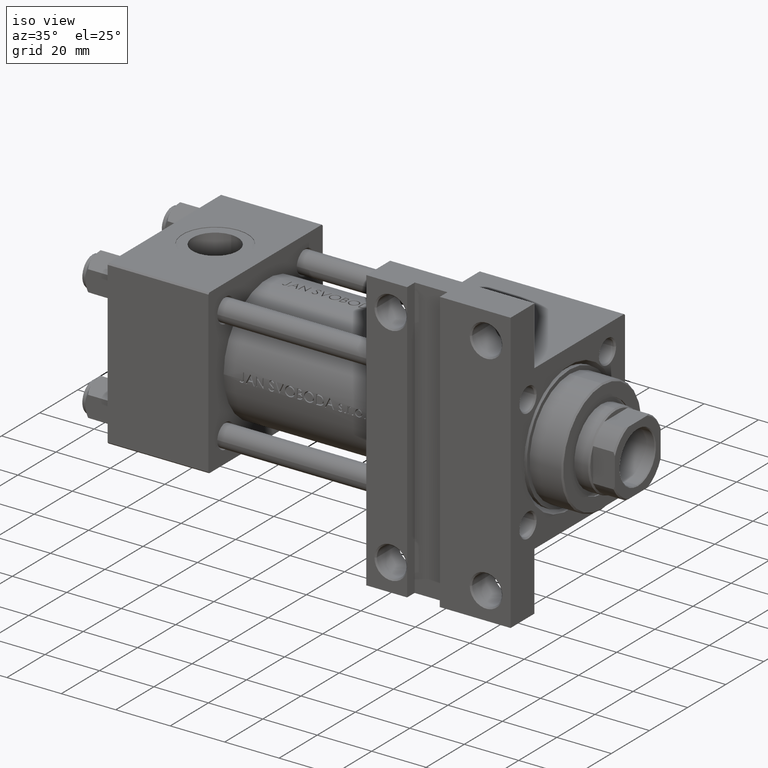
[diagram: clean part render]
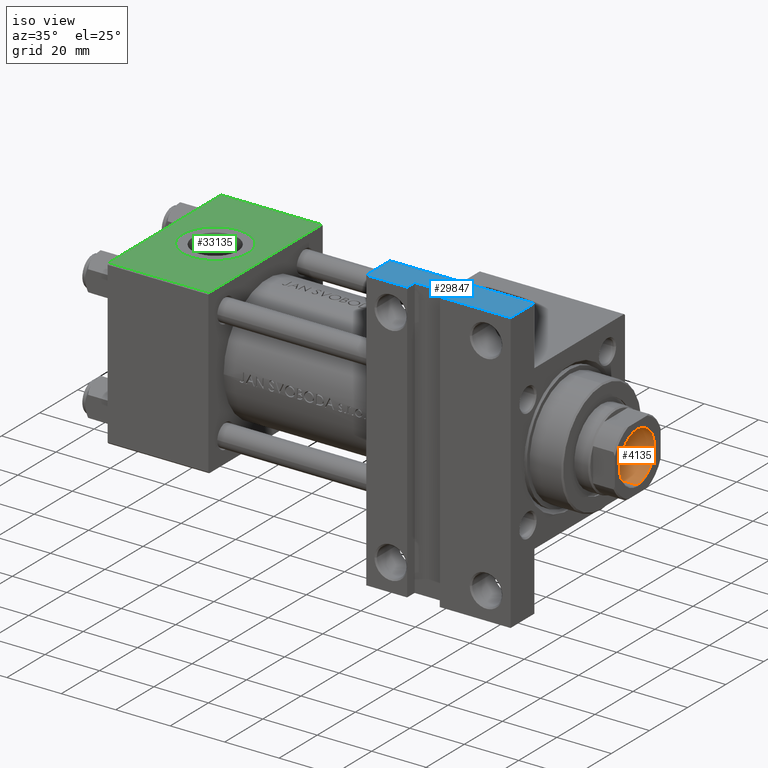
[diagram: same view with three faces highlighted in distinct colors, each labeled with its STEP entity id]
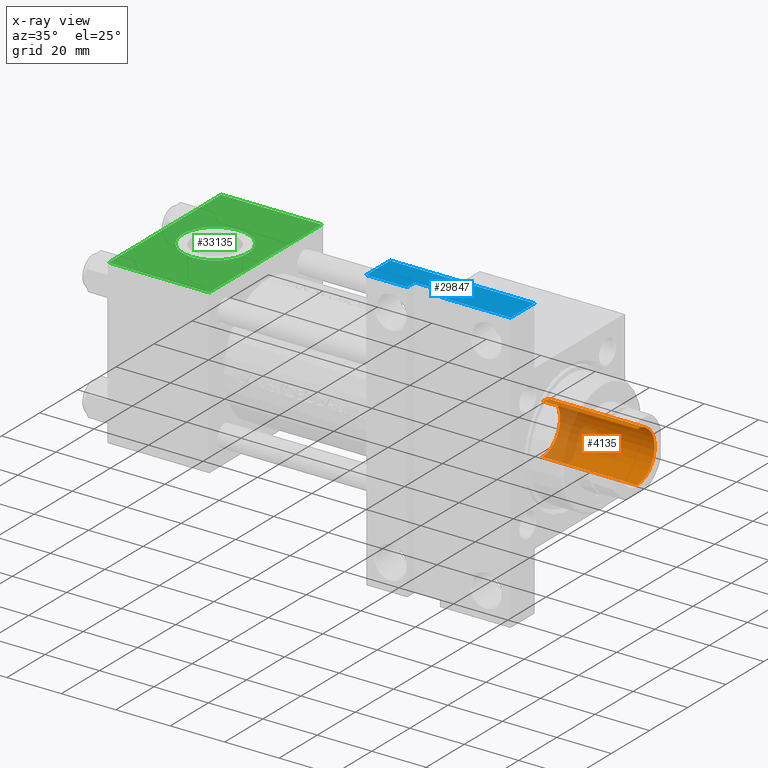
[diagram: x-ray of the same camera — body ghosted, the three highlighted faces saturated]
A machine part, iso view with three faces highlighted in distinct colors.
The next image is the same camera in x-ray (body ghosted, the three faces saturated) — at least one of them is partly hidden behind the body in this view.
Their STEP definitions:

[orange] entity #4135 — the highlighted cylindrical surface (edge-blend (fillet) strip) has radius 9.25 mm, axis along (1, 0, 0).
#2421 = VERTEX_POINT ( 'NONE', #5140 ) ;
#2579 = DIRECTION ( 'NONE',  ( -0.000000000000000000, -0.000000000000000000, 1.000000000000000000 ) ) ;
#4135 = ADVANCED_FACE ( 'NONE', ( #43366 ), #5666, .F. ) ;
#5140 = CARTESIAN_POINT ( 'NONE',  ( 9.249999999999994671, 0.000000000000000000, 135.7000000000000455 ) ) ;
#5666 = CYLINDRICAL_SURFACE ( 'NONE', #7620, 9.249999999999994671 ) ;
#5753 = CARTESIAN_POINT ( 'NONE',  ( -9.249999999999992895, 1.132798289211300712E-15, 101.0000000000000000 ) ) ;
#6407 = VERTEX_POINT ( 'NONE', #28234 ) ;
#7620 = AXIS2_PLACEMENT_3D ( 'NONE', #17232, #25110, #21403 ) ;
#10296 = DIRECTION ( 'NONE',  ( 0.000000000000000000, 0.000000000000000000, 1.000000000000000000 ) ) ;
#12410 = VERTEX_POINT ( 'NONE', #48758 ) ;
#12504 = AXIS2_PLACEMENT_3D ( 'NONE', #13994, #10296, #13273 ) ;
#13273 = DIRECTION ( 'NONE',  ( 1.000000000000000000, 0.000000000000000000, 0.000000000000000000 ) ) ;
#13994 = CARTESIAN_POINT ( 'NONE',  ( 0.000000000000000000, 0.000000000000000000, 135.7000000000000455 ) ) ;
#16778 = VERTEX_POINT ( 'NONE', #5753 ) ;
#17232 = CARTESIAN_POINT ( 'NONE',  ( 0.000000000000000000, 0.000000000000000000, 136.0000000000000000 ) ) ;
#17284 = LINE ( 'NONE', #32317, #23248 ) ;
#19001 = AXIS2_PLACEMENT_3D ( 'NONE', #40282, #2579, #39797 ) ;
#20593 = CIRCLE ( 'NONE', #19001, 9.249999999999992895 ) ;
#20860 = DIRECTION ( 'NONE',  ( -0.000000000000000000, -0.000000000000000000, 1.000000000000000000 ) ) ;
#21403 = DIRECTION ( 'NONE',  ( 1.000000000000000000, 0.000000000000000000, 0.000000000000000000 ) ) ;
#23248 = VECTOR ( 'NONE', #42454, 1000.000000000000000 ) ;
#25110 = DIRECTION ( 'NONE',  ( -0.000000000000000000, -0.000000000000000000, 1.000000000000000000 ) ) ;
#26509 = EDGE_CURVE ( 'NONE', #16778, #6407, #20593, .T. ) ;
#28052 = ORIENTED_EDGE ( 'NONE', *, *, #28576, .T. ) ;
#28076 = ORIENTED_EDGE ( 'NONE', *, *, #47843, .T. ) ;
#28230 = CIRCLE ( 'NONE', #12504, 9.249999999999994671 ) ;
#28234 = CARTESIAN_POINT ( 'NONE',  ( 9.249999999999992895, 0.000000000000000000, 101.0000000000000000 ) ) ;
#28576 = EDGE_CURVE ( 'NONE', #16778, #12410, #39619, .T. ) ;
#32317 = CARTESIAN_POINT ( 'NONE',  ( 9.249999999999994671, 0.000000000000000000, 136.0000000000000000 ) ) ;
#35190 = CARTESIAN_POINT ( 'NONE',  ( -9.249999999999994671, 1.132798289211300909E-15, 136.0000000000000000 ) ) ;
#37252 = EDGE_CURVE ( 'NONE', #6407, #2421, #17284, .T. ) ;
#38590 = EDGE_LOOP ( 'NONE', ( #42756, #28052, #28076, #39404 ) ) ;
#39404 = ORIENTED_EDGE ( 'NONE', *, *, #37252, .F. ) ;
#39545 = VECTOR ( 'NONE', #20860, 1000.000000000000000 ) ;
#39619 = LINE ( 'NONE', #35190, #39545 ) ;
#39797 = DIRECTION ( 'NONE',  ( 1.000000000000000000, 0.000000000000000000, 0.000000000000000000 ) ) ;
#40282 = CARTESIAN_POINT ( 'NONE',  ( 0.000000000000000000, 0.000000000000000000, 101.0000000000000000 ) ) ;
#42454 = DIRECTION ( 'NONE',  ( -0.000000000000000000, -0.000000000000000000, 1.000000000000000000 ) ) ;
#42756 = ORIENTED_EDGE ( 'NONE', *, *, #26509, .F. ) ;
#43366 = FACE_OUTER_BOUND ( 'NONE', #38590, .T. ) ;
#47843 = EDGE_CURVE ( 'NONE', #12410, #2421, #28230, .T. ) ;
#48758 = CARTESIAN_POINT ( 'NONE',  ( -9.249999999999994671, 1.132798289211300909E-15, 135.7000000000000455 ) ) ;

[blue] entity #29847 — the highlighted planar face has unit normal (0, 0, 1).
#265 = VERTEX_POINT ( 'NONE', #48111 ) ;
#1866 = CARTESIAN_POINT ( 'NONE',  ( 94.99999999999998579, -51.50000000000000711, -17.49999999999999645 ) ) ;
#2589 = EDGE_CURVE ( 'NONE', #265, #37037, #29459, .T. ) ;
#3569 = LINE ( 'NONE', #18590, #29837 ) ;
#4077 = EDGE_CURVE ( 'NONE', #9869, #8596, #40158, .T. ) ;
#4221 = CARTESIAN_POINT ( 'NONE',  ( 109.9999999999999858, -51.49999999999999289, -29.99999999999999645 ) ) ;
#5375 = VECTOR ( 'NONE', #18919, 1000.000000000000000 ) ;
#5754 = EDGE_CURVE ( 'NONE', #37037, #47398, #30817, .T. ) ;
#6809 = VECTOR ( 'NONE', #29221, 1000.000000000000000 ) ;
#7032 = CARTESIAN_POINT ( 'NONE',  ( 109.9999999999999858, -51.49999999999999289, -25.99999999999999645 ) ) ;
#8395 = VECTOR ( 'NONE', #21639, 1000.000000000000000 ) ;
#8596 = VERTEX_POINT ( 'NONE', #30734 ) ;
#8976 = VERTEX_POINT ( 'NONE', #9712 ) ;
#9712 = CARTESIAN_POINT ( 'NONE',  ( 121.9999999999999858, -51.49999999999999289, -29.99999999999999645 ) ) ;
#9869 = VERTEX_POINT ( 'NONE', #34318 ) ;
#10085 = CARTESIAN_POINT ( 'NONE',  ( 94.99999999999998579, -51.50000000000000711, -17.49999999999999645 ) ) ;
#10439 = DIRECTION ( 'NONE',  ( -1.000000000000000000, -0.000000000000000000, -0.000000000000000000 ) ) ;
#10525 = EDGE_CURVE ( 'NONE', #265, #8976, #30994, .T. ) ;
#10967 = ORIENTED_EDGE ( 'NONE', *, *, #10525, .T. ) ;
#13300 = CARTESIAN_POINT ( 'NONE',  ( 148.0000000000000000, -51.50000000000000711, -17.49999999999999645 ) ) ;
#13790 = CARTESIAN_POINT ( 'NONE',  ( 109.9999999999999858, -51.49999999999999289, -25.99999999999999645 ) ) ;
#14397 = AXIS2_PLACEMENT_3D ( 'NONE', #1866, #47450, #16882 ) ;
#15820 = DIRECTION ( 'NONE',  ( 0.000000000000000000, 0.000000000000000000, -1.000000000000000000 ) ) ;
#16441 = CARTESIAN_POINT ( 'NONE',  ( 94.99999999999998579, -51.50000000000000711, -17.49999999999999645 ) ) ;
#16882 = DIRECTION ( 'NONE',  ( 0.000000000000000000, -0.000000000000000000, -1.000000000000000000 ) ) ;
#17892 = EDGE_CURVE ( 'NONE', #41766, #26267, #3569, .T. ) ;
#18092 = EDGE_CURVE ( 'NONE', #47398, #26267, #24903, .T. ) ;
#18590 = CARTESIAN_POINT ( 'NONE',  ( 94.99999999999998579, -51.50000000000000711, -17.49999999999999645 ) ) ;
#18919 = DIRECTION ( 'NONE',  ( -0.000000000000000000, -0.000000000000000000, -1.000000000000000000 ) ) ;
#20044 = EDGE_CURVE ( 'NONE', #9869, #41766, #28021, .T. ) ;
#20816 = FACE_OUTER_BOUND ( 'NONE', #21840, .T. ) ;
#21447 = DIRECTION ( 'NONE',  ( -1.000000000000000000, -0.000000000000000000, -0.000000000000000000 ) ) ;
#21639 = DIRECTION ( 'NONE',  ( 0.000000000000000000, 0.000000000000000000, -1.000000000000000000 ) ) ;
#21840 = EDGE_LOOP ( 'NONE', ( #10967, #23717, #30171, #28822, #28594, #34877, #44403, #25259 ) ) ;
#23717 = ORIENTED_EDGE ( 'NONE', *, *, #25730, .F. ) ;
#24314 = DIRECTION ( 'NONE',  ( -1.000000000000000000, -0.000000000000000000, -0.000000000000000000 ) ) ;
#24903 = LINE ( 'NONE', #25639, #32987 ) ;
#25259 = ORIENTED_EDGE ( 'NONE', *, *, #2589, .F. ) ;
#25639 = CARTESIAN_POINT ( 'NONE',  ( 94.99999999999998579, -51.50000000000000711, -29.99999999999999645 ) ) ;
#25730 = EDGE_CURVE ( 'NONE', #8596, #8976, #40275, .T. ) ;
#26263 = CARTESIAN_POINT ( 'NONE',  ( 94.99999999999998579, -51.50000000000000711, -29.99999999999999645 ) ) ;
#26267 = VERTEX_POINT ( 'NONE', #26263 ) ;
#28021 = LINE ( 'NONE', #16441, #44860 ) ;
#28594 = ORIENTED_EDGE ( 'NONE', *, *, #17892, .T. ) ;
#28822 = ORIENTED_EDGE ( 'NONE', *, *, #20044, .T. ) ;
#29221 = DIRECTION ( 'NONE',  ( -1.000000000000000000, -0.000000000000000000, -0.000000000000000000 ) ) ;
#29459 = LINE ( 'NONE', #7032, #6809 ) ;
#29837 = VECTOR ( 'NONE', #15820, 1000.000000000000000 ) ;
#29847 = ADVANCED_FACE ( 'NONE', ( #20816 ), #39572, .T. ) ;
#30171 = ORIENTED_EDGE ( 'NONE', *, *, #4077, .F. ) ;
#30734 = CARTESIAN_POINT ( 'NONE',  ( 148.0000000000000000, -51.50000000000000711, -29.99999999999999645 ) ) ;
#30817 = LINE ( 'NONE', #13790, #47855 ) ;
#30994 = LINE ( 'NONE', #46028, #5375 ) ;
#31557 = DIRECTION ( 'NONE',  ( -0.000000000000000000, -0.000000000000000000, -1.000000000000000000 ) ) ;
#32376 = CARTESIAN_POINT ( 'NONE',  ( 109.9999999999999858, -51.49999999999999289, -25.99999999999999645 ) ) ;
#32987 = VECTOR ( 'NONE', #21447, 1000.000000000000000 ) ;
#34318 = CARTESIAN_POINT ( 'NONE',  ( 148.0000000000000000, -51.50000000000000711, -17.49999999999999645 ) ) ;
#34877 = ORIENTED_EDGE ( 'NONE', *, *, #18092, .F. ) ;
#37037 = VERTEX_POINT ( 'NONE', #32376 ) ;
#39572 = PLANE ( 'NONE',  #14397 ) ;
#40158 = LINE ( 'NONE', #13300, #8395 ) ;
#40275 = LINE ( 'NONE', #47923, #40345 ) ;
#40345 = VECTOR ( 'NONE', #10439, 1000.000000000000000 ) ;
#41766 = VERTEX_POINT ( 'NONE', #10085 ) ;
#44403 = ORIENTED_EDGE ( 'NONE', *, *, #5754, .F. ) ;
#44860 = VECTOR ( 'NONE', #24314, 1000.000000000000000 ) ;
#46028 = CARTESIAN_POINT ( 'NONE',  ( 121.9999999999999858, -51.49999999999999289, -25.99999999999999645 ) ) ;
#47398 = VERTEX_POINT ( 'NONE', #4221 ) ;
#47450 = DIRECTION ( 'NONE',  ( 0.000000000000000000, -1.000000000000000000, 0.000000000000000000 ) ) ;
#47855 = VECTOR ( 'NONE', #31557, 1000.000000000000000 ) ;
#47923 = CARTESIAN_POINT ( 'NONE',  ( 94.99999999999998579, -51.50000000000000711, -29.99999999999999645 ) ) ;
#48111 = CARTESIAN_POINT ( 'NONE',  ( 121.9999999999999858, -51.50000000000000711, -25.99999999999999645 ) ) ;

[green] entity #33135 — the highlighted planar face has unit normal (0, 0, -1).
#917 = EDGE_CURVE ( 'NONE', #15192, #35498, #15852, .T. ) ;
#2215 = VERTEX_POINT ( 'NONE', #31805 ) ;
#3155 = DIRECTION ( 'NONE',  ( -0.000000000000000000, 1.000000000000000000, 0.000000000000000000 ) ) ;
#4107 = PLANE ( 'NONE',  #32585 ) ;
#5561 = CARTESIAN_POINT ( 'NONE',  ( 37.00000000000000000, -30.00000000000000000, -29.50000000000001776 ) ) ;
#7081 = EDGE_LOOP ( 'NONE', ( #20955, #16948, #9656, #11019 ) ) ;
#9656 = ORIENTED_EDGE ( 'NONE', *, *, #20228, .F. ) ;
#9875 = LINE ( 'NONE', #32540, #21119 ) ;
#9957 = VECTOR ( 'NONE', #17364, 1000.000000000000000 ) ;
#10089 = ORIENTED_EDGE ( 'NONE', *, *, #10199, .F. ) ;
#10199 = EDGE_CURVE ( 'NONE', #2215, #43698, #35284, .T. ) ;
#11019 = ORIENTED_EDGE ( 'NONE', *, *, #917, .T. ) ;
#11254 = EDGE_CURVE ( 'NONE', #35498, #16148, #9875, .T. ) ;
#11266 = DIRECTION ( 'NONE',  ( 0.000000000000000000, -0.000000000000000000, 1.000000000000000000 ) ) ;
#12022 = EDGE_LOOP ( 'NONE', ( #17046, #10089 ) ) ;
#12291 = CARTESIAN_POINT ( 'NONE',  ( 37.00000000000000000, -30.00000000000000000, 29.49999999999999289 ) ) ;
#12342 = CARTESIAN_POINT ( 'NONE',  ( 0.000000000000000000, -30.00000000000000000, -29.50000000000001776 ) ) ;
#13693 = CARTESIAN_POINT ( 'NONE',  ( 18.50000000000000000, -30.00000000000000000, 0.000000000000000000 ) ) ;
#14143 = CARTESIAN_POINT ( 'NONE',  ( 37.00000000000000000, -30.00000000000000000, -29.50000000000001776 ) ) ;
#15163 = DIRECTION ( 'NONE',  ( 0.000000000000000000, 0.000000000000000000, -1.000000000000000000 ) ) ;
#15192 = VERTEX_POINT ( 'NONE', #12291 ) ;
#15683 = CIRCLE ( 'NONE', #33769, 12.00000000000000178 ) ;
#15852 = LINE ( 'NONE', #31615, #44405 ) ;
#16024 = DIRECTION ( 'NONE',  ( 0.000000000000000000, 0.000000000000000000, -1.000000000000000000 ) ) ;
#16148 = VERTEX_POINT ( 'NONE', #12342 ) ;
#16513 = DIRECTION ( 'NONE',  ( 0.000000000000000000, -1.000000000000000000, -8.673617379884036705E-17 ) ) ;
#16948 = ORIENTED_EDGE ( 'NONE', *, *, #42338, .T. ) ;
#17046 = ORIENTED_EDGE ( 'NONE', *, *, #17870, .F. ) ;
#17364 = DIRECTION ( 'NONE',  ( 1.000000000000000000, 0.000000000000000000, 0.000000000000000000 ) ) ;
#17870 = EDGE_CURVE ( 'NONE', #43698, #2215, #15683, .T. ) ;
#18845 = CARTESIAN_POINT ( 'NONE',  ( 37.00000000000000000, -30.00000000000000000, 29.99999999999999289 ) ) ;
#18949 = CARTESIAN_POINT ( 'NONE',  ( 0.000000000000000000, -30.00000000000000000, 29.49999999999999289 ) ) ;
#19531 = AXIS2_PLACEMENT_3D ( 'NONE', #45846, #16513, #16024 ) ;
#20228 = EDGE_CURVE ( 'NONE', #15192, #26521, #33888, .T. ) ;
#20955 = ORIENTED_EDGE ( 'NONE', *, *, #11254, .T. ) ;
#21119 = VECTOR ( 'NONE', #40929, 1000.000000000000000 ) ;
#22588 = FACE_BOUND ( 'NONE', #12022, .T. ) ;
#25967 = VECTOR ( 'NONE', #15163, 1000.000000000000000 ) ;
#26521 = VERTEX_POINT ( 'NONE', #14143 ) ;
#28727 = DIRECTION ( 'NONE',  ( 0.000000000000000000, -1.000000000000000000, -8.673617379884036705E-17 ) ) ;
#31615 = CARTESIAN_POINT ( 'NONE',  ( 37.00000000000000000, -30.00000000000000000, 29.49999999999999289 ) ) ;
#31805 = CARTESIAN_POINT ( 'NONE',  ( 18.50000000000000000, -30.00000000000000000, 12.00000000000000178 ) ) ;
#32540 = CARTESIAN_POINT ( 'NONE',  ( 0.000000000000000000, -30.00000000000000000, 29.99999999999999289 ) ) ;
#32585 = AXIS2_PLACEMENT_3D ( 'NONE', #48498, #3155, #11266 ) ;
#33135 = ADVANCED_FACE ( 'NONE', ( #22588, #48258 ), #4107, .F. ) ;
#33769 = AXIS2_PLACEMENT_3D ( 'NONE', #13693, #28727, #47234 ) ;
#33888 = LINE ( 'NONE', #18845, #25967 ) ;
#35284 = CIRCLE ( 'NONE', #19531, 12.00000000000000178 ) ;
#35498 = VERTEX_POINT ( 'NONE', #18949 ) ;
#36291 = CARTESIAN_POINT ( 'NONE',  ( 18.50000000000000000, -30.00000000000000000, -12.00000000000000178 ) ) ;
#40929 = DIRECTION ( 'NONE',  ( 0.000000000000000000, 0.000000000000000000, -1.000000000000000000 ) ) ;
#42338 = EDGE_CURVE ( 'NONE', #16148, #26521, #47936, .T. ) ;
#42727 = DIRECTION ( 'NONE',  ( -1.000000000000000000, 0.000000000000000000, 0.000000000000000000 ) ) ;
#43698 = VERTEX_POINT ( 'NONE', #36291 ) ;
#44405 = VECTOR ( 'NONE', #42727, 1000.000000000000000 ) ;
#45846 = CARTESIAN_POINT ( 'NONE',  ( 18.50000000000000000, -30.00000000000000000, 0.000000000000000000 ) ) ;
#47234 = DIRECTION ( 'NONE',  ( 0.000000000000000000, 0.000000000000000000, -1.000000000000000000 ) ) ;
#47936 = LINE ( 'NONE', #5561, #9957 ) ;
#48258 = FACE_OUTER_BOUND ( 'NONE', #7081, .T. ) ;
#48498 = CARTESIAN_POINT ( 'NONE',  ( 37.00000000000000000, -30.00000000000000000, 29.99999999999999289 ) ) ;